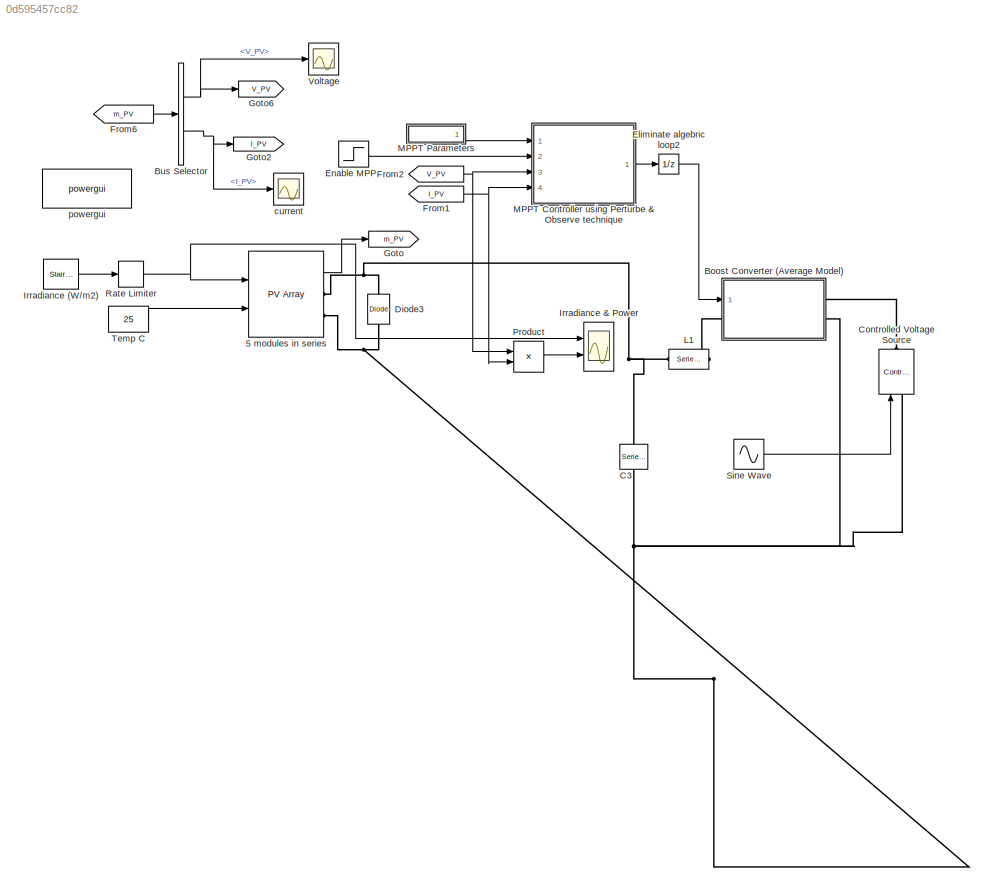
MODEL slx_0d595457cc82
KIND model
CONFIG AbsTol = auto
CONFIG EnableMultiTasking = off
CONFIG FixedStep = auto
CONFIG MaxStep = auto
CONFIG MinStep = auto
CONFIG RelTol = 1e-3
CONFIG SampleTimeConstraint = Unconstrained
CONFIG SolverName = VariableStepAuto
CONFIG StartTime = 0.0
CONFIG StopTime = 5
BLOCK [Reference] 5 modules in series  REF=spsPVArrayLib/PV Array
  Ports = [2, 1, 0, 0, 0, 0, 2]
  SourceBlock = spsPVArrayLib/PV Array
  SourceProductBaseCode = PS
  SourceType = PV array
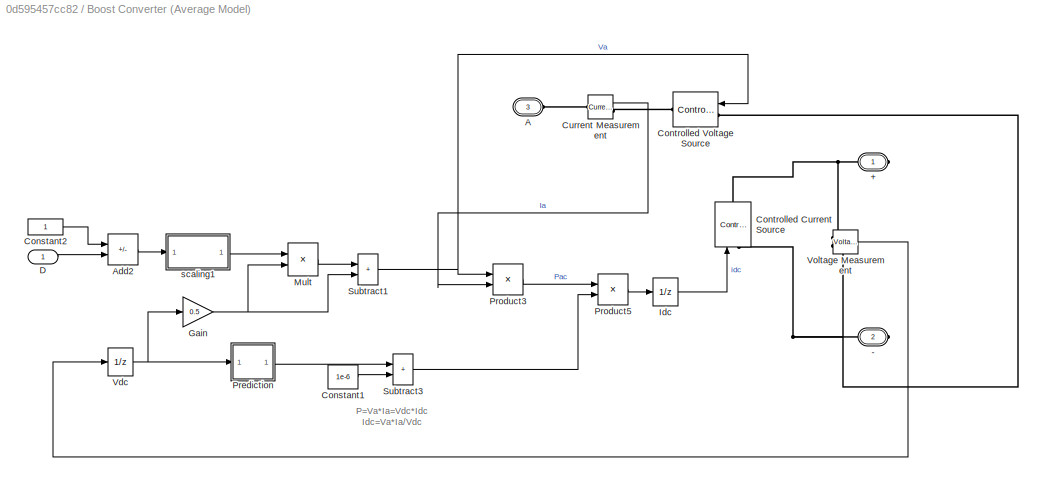
BLOCK [SubSystem] Boost Converter (Average Model)
  NameLocation = top
  Ports = [1, 0, 0, 0, 0, 1, 2]
  RequestExecContextInheritance = off
BLOCK [PMIOPort] Boost Converter (Average Model)/+
  Side = Right
  Tag = PMCPort
BLOCK [PMIOPort] Boost Converter (Average Model)/-
  Port = 2
  Side = Right
  Tag = PMCPort
BLOCK [PMIOPort] Boost Converter (Average Model)/A
  Port = 3
  Side = Left
  Tag = PMCPort
BLOCK [Sum] Boost Converter (Average Model)/Add2
  IconShape = rectangular
  Inputs = +-
  Ports = [2, 1]
BLOCK [Constant] Boost Converter (Average Model)/Constant1
  Value = 1e-6
BLOCK [Constant] Boost Converter (Average Model)/Constant2
BLOCK [Reference] Boost Converter (Average Model)/Controlled Current Source  REF=spsControlledCurrentSourceLib/Controlled Current Source
  NameLocation = right
  Ports = [1, 0, 0, 0, 0, 1, 1]
  SourceBlock = spsControlledCurrentSourceLib/Controlled Current Source
  SourceProductBaseCode = PS
  SourceType = Controlled Current Source
BLOCK [Reference] Boost Converter (Average Model)/Controlled Voltage Source  REF=spsControlledVoltageSourceLib/Controlled Voltage Source
  Ports = [1, 0, 0, 0, 0, 1, 1]
  SourceBlock = spsControlledVoltageSourceLib/Controlled Voltage Source
  SourceProductBaseCode = PS
  SourceType = Controlled Voltage Source
BLOCK [Reference] Boost Converter (Average Model)/Current Measurement  REF=spsCurrentMeasurementLib/Current Measurement
  Ports = [0, 1, 0, 0, 0, 1, 1]
  SourceBlock = spsCurrentMeasurementLib/Current Measurement
  SourceProductBaseCode = PS
  SourceType = Current Measurement
BLOCK [Inport] Boost Converter (Average Model)/D
BLOCK [Gain] Boost Converter (Average Model)/Gain
  Gain = 0.5
  NameLocation = top
BLOCK [UnitDelay] Boost Converter (Average Model)/Idc
  HasFrameUpgradeWarning = on
  SampleTime = Ts
BLOCK [Product] Boost Converter (Average Model)/Mult
  Inputs = **
  Ports = [2, 1]
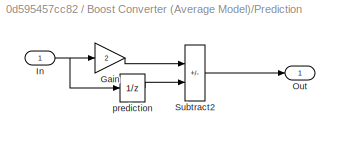
BLOCK [SubSystem] Boost Converter (Average Model)/Prediction
  Ports = [1, 1]
  RequestExecContextInheritance = off
BLOCK [Gain] Boost Converter (Average Model)/Prediction/Gain
  Gain = 2
BLOCK [Inport] Boost Converter (Average Model)/Prediction/In
BLOCK [Outport] Boost Converter (Average Model)/Prediction/Out
BLOCK [Sum] Boost Converter (Average Model)/Prediction/Subtract2
  IconShape = rectangular
  Inputs = +-
  Ports = [2, 1]
BLOCK [UnitDelay] Boost Converter (Average Model)/Prediction/prediction
  HasFrameUpgradeWarning = on
  SampleTime = Ts
BLOCK [Product] Boost Converter (Average Model)/Product3
  Ports = [2, 1]
  RndMeth = Zero
BLOCK [Product] Boost Converter (Average Model)/Product5
  Inputs = */
  Ports = [2, 1]
  RndMeth = Zero
BLOCK [Sum] Boost Converter (Average Model)/Subtract1
  IconShape = rectangular
  Ports = [2, 1]
BLOCK [Sum] Boost Converter (Average Model)/Subtract3
  IconShape = rectangular
  Ports = [2, 1]
BLOCK [UnitDelay] Boost Converter (Average Model)/Vdc
  HasFrameUpgradeWarning = on
  SampleTime = Ts
BLOCK [Reference] Boost Converter (Average Model)/Voltage Measurement  REF=spsVoltageMeasurementLib/Voltage Measurement
  Ports = [0, 1, 0, 0, 0, 2]
  SourceBlock = spsVoltageMeasurementLib/Voltage Measurement
  SourceProductBaseCode = PS
  SourceType = Voltage Measurement
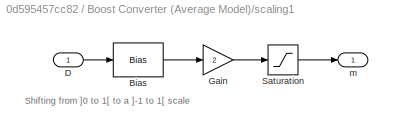
BLOCK [SubSystem] Boost Converter (Average Model)/scaling1
  NameLocation = top
  Ports = [1, 1]
  RequestExecContextInheritance = off
BLOCK [Bias] Boost Converter (Average Model)/scaling1/Bias
  Bias = -0.5
  SaturateOnIntegerOverflow = off
BLOCK [Inport] Boost Converter (Average Model)/scaling1/D
BLOCK [Gain] Boost Converter (Average Model)/scaling1/Gain
  Gain = 2
BLOCK [Saturate] Boost Converter (Average Model)/scaling1/Saturation
  LowerLimit = -1
  UpperLimit = 1
BLOCK [Outport] Boost Converter (Average Model)/scaling1/m
BLOCK [BusSelector] Bus Selector
  OutputSignals = V_PV,I_PV
  Ports = [1, 2]
BLOCK [Reference] C3  REF=spsSeriesRLCBranchLib/Series RLC Branch
  AttributesFormatString = \n
  NameLocation = left
  Ports = [0, 0, 0, 0, 0, 1, 1]
  SourceBlock = spsSeriesRLCBranchLib/Series RLC Branch
  SourceProductBaseCode = PS
  SourceType = Series RLC Branch
BLOCK [Reference] Controlled Voltage Source  REF=spsControlledVoltageSourceLib/Controlled Voltage Source
  NameLocation = right
  Ports = [1, 0, 0, 0, 0, 1, 1]
  SourceBlock = spsControlledVoltageSourceLib/Controlled Voltage Source
  SourceProductBaseCode = PS
  SourceType = Controlled Voltage Source
BLOCK [Reference] Diode3  REF=spsDiodeLib/Diode
  NameLocation = right
  Ports = [0, 0, 0, 0, 0, 1, 1]
  SourceBlock = spsDiodeLib/Diode
  SourceProductBaseCode = PS
  SourceType = Diode
BLOCK [UnitDelay] Eliminate algebric loop2
  HasFrameUpgradeWarning = on
  NameLocation = top
  SampleTime = Ts_Control
BLOCK [Step] Enable MPPT
  SampleTime = 0
  Time = 0.25
BLOCK [From] From1
  CloseFcn = tagdialog Close
  GotoTag = I_PV
  TagVisibility = global
BLOCK [From] From2
  CloseFcn = tagdialog Close
  GotoTag = V_PV
  TagVisibility = global
BLOCK [From] From6
  GotoTag = m_PV
BLOCK [Goto] Goto
  GotoTag = m_PV
BLOCK [Goto] Goto2
  GotoTag = I_PV
  TagVisibility = global
BLOCK [Goto] Goto6
  GotoTag = V_PV
  TagVisibility = global
BLOCK [Scope] Irradiance & Power
  Floating = off
  NumInputPorts = 2
  Ports = [2]
  ScopeSpecificationString = Simulink.scopes.TimeScopeBlockCfg('CurrentConfiguration', extmgr.ConfigurationSet(extmgr.Configuration('Core','General UI',true),extmgr.Configuration('Core','Source UI',true),extmgr.Configuration('Sources','WiredSimulink',true,'DataLoggingVariableName','ScopeData1'),extmgr.Configuration('Visuals','Time Domain',true,'SerializedDisplays',{struct('MinYLimReal','-125.00000','MaxYLimReal','1119.17093',...<+2086ch>
BLOCK [Reference] Irradiance (W//m2)  REF=spsStairGeneratorLib/Stair
Generator
  NameLocation = top
  Ports = [0, 1]
  SourceBlock = spsStairGeneratorLib/Stair\nGenerator
  SourceProductBaseCode = PS
  SourceType = Stair Generator
BLOCK [Reference] L1  REF=spsSeriesRLCBranchLib/Series RLC Branch
  Ports = [0, 0, 0, 0, 0, 1, 1]
  SourceBlock = spsSeriesRLCBranchLib/Series RLC Branch
  SourceProductBaseCode = PS
  SourceType = Series RLC Branch
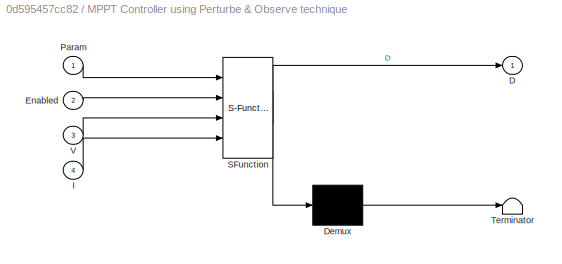
BLOCK [SubSystem] MPPT Controller using Perturbe & Observe technique 
  ErrorFcn = Stateflow.Translate.translate
  NameLocation = top
  PermitHierarchicalResolution = ExplicitOnly
  Ports = [4, 1]
  RequestExecContextInheritance = off
  SFBlockType = MATLAB Function
  TreatAsAtomicUnit = on
BLOCK [Demux] MPPT Controller using Perturbe & Observe technique / Demux 
  Outputs = 1
  Ports = [1, 1]
BLOCK [S-Function] MPPT Controller using Perturbe & Observe technique / SFunction 
  EnableBusSupport = on
  FunctionName = sf_sfun
  PortCounts = [4 2]
  Ports = [4, 2]
  SFcnIsStateOwnerBlock = off
  SFunctionDeploymentMode = off
  Tag = Stateflow S-Function 4
BLOCK [Terminator] MPPT Controller using Perturbe & Observe technique / Terminator 
BLOCK [Outport] MPPT Controller using Perturbe & Observe technique /D
BLOCK [Inport] MPPT Controller using Perturbe & Observe technique /Enabled
  Port = 2
BLOCK [Inport] MPPT Controller using Perturbe & Observe technique /I
  Port = 4
BLOCK [Inport] MPPT Controller using Perturbe & Observe technique /Param
BLOCK [Inport] MPPT Controller using Perturbe & Observe technique /V
  Port = 3
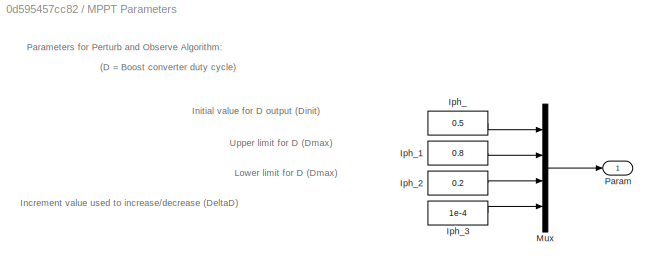
BLOCK [SubSystem] MPPT Parameters
  NameLocation = top
  Ports = [0, 1]
  RequestExecContextInheritance = off
BLOCK [Constant] MPPT Parameters/Iph_
  Value = 0.5
BLOCK [Constant] MPPT Parameters/Iph_1
  Value = 0.8
BLOCK [Constant] MPPT Parameters/Iph_2
  Value = 0.2
BLOCK [Constant] MPPT Parameters/Iph_3
  Value = 1e-4
BLOCK [Mux] MPPT Parameters/Mux
  DisplayOption = bar
  Ports = [4, 1]
BLOCK [Outport] MPPT Parameters/Param
BLOCK [Product] Product
  Ports = [2, 1]
BLOCK [RateLimiter] Rate Limiter
  FallingSlewLimit = -6000
  InitialCondition = 1000
  NameLocation = top
  RisingSlewLimit = 6000
  SampleTimeMode = inherited
BLOCK [Sin] Sine Wave
  Amplitude = 0.1
  Bias = 400
  Frequency = 2*pi
  Ports = [0, 1]
  SampleTime = 0
BLOCK [Constant] Temp C
  Value = 25
BLOCK [Scope] Voltage
  Floating = off
  NumInputPorts = 1
  Ports = [1]
  ScopeSpecificationString = Simulink.scopes.TimeScopeBlockCfg('CurrentConfiguration', extmgr.ConfigurationSet(extmgr.Configuration('Core','General UI',true),extmgr.Configuration('Core','Source UI',true),extmgr.Configuration('Sources','WiredSimulink',true,'DataLoggingVariableName','ScopeData2'),extmgr.Configuration('Visuals','Time Domain',true,'SerializedDisplays',{struct('MinYLimReal','-38.80492','MaxYLimReal','354.21041','Y...<+1394ch>
BLOCK [Scope] current
  Floating = off
  NumInputPorts = 1
  Ports = [1]
  ScopeSpecificationString = Simulink.scopes.TimeScopeBlockCfg('CurrentConfiguration', extmgr.ConfigurationSet(extmgr.Configuration('Core','General UI',true),extmgr.Configuration('Core','Source UI',true),extmgr.Configuration('Sources','WiredSimulink',true),extmgr.Configuration('Visuals','Time Domain',true,'SerializedDisplays',{struct('MinYLimReal','-38.80492','MaxYLimReal','354.21041','YLabelReal','','MinYLimMag','0.00000','M...<+1355ch>
BLOCK [Reference] powergui  REF=spspowerguiLib/powergui
  Ports = []
  Priority = 1
  SourceBlock = spspowerguiLib/powergui
  SourceProductBaseCode = PS
  SourceType = PSB option menu block
ANNOTATION Boost Converter (Average Model): P=Va*Ia=Vdc*Idc Idc=Va*Ia/Vdc
ANNOTATION Boost Converter (Average Model)/scaling1: Shifting from ]0 to 1[ to a ]-1 to 1[ scale
ANNOTATION MPPT Parameters: (D = Boost converter duty cycle)
ANNOTATION MPPT Parameters: Increment value used to increase/decrease (DeltaD)
ANNOTATION MPPT Parameters: Initial value for D output (Dinit)
ANNOTATION MPPT Parameters: Lower limit for D (Dmax)
ANNOTATION MPPT Parameters: Parameters for Perturb and Observe Algorithm:
ANNOTATION MPPT Parameters: Upper limit for D (Dmax)
LINE 5 modules in series:1 -> Goto:1
LINE Boost Converter (Average Model)/Add2:1 -> Boost Converter (Average Model)/scaling1:1
LINE Boost Converter (Average Model)/Constant1:1 -> Boost Converter (Average Model)/Subtract3:2
LINE Boost Converter (Average Model)/Constant2:1 -> Boost Converter (Average Model)/Add2:1
LINE Boost Converter (Average Model)/Current Measurement:1 -> Boost Converter (Average Model)/Product3:2
LINE Boost Converter (Average Model)/D:1 -> Boost Converter (Average Model)/Add2:2
NET Boost Converter (Average Model)/Gain:1 -> Boost Converter (Average Model)/Mult:2, Boost Converter (Average Model)/Subtract1:2
LINE Boost Converter (Average Model)/Idc:1 -> Boost Converter (Average Model)/Controlled Current Source:1
LINE Boost Converter (Average Model)/Mult:1 -> Boost Converter (Average Model)/Subtract1:1
LINE Boost Converter (Average Model)/Prediction/Gain:1 -> Boost Converter (Average Model)/Prediction/Subtract2:1
NET Boost Converter (Average Model)/Prediction/In:1 -> Boost Converter (Average Model)/Prediction/Gain:1, Boost Converter (Average Model)/Prediction/prediction:1
LINE Boost Converter (Average Model)/Prediction/Subtract2:1 -> Boost Converter (Average Model)/Prediction/Out:1
LINE Boost Converter (Average Model)/Prediction/prediction:1 -> Boost Converter (Average Model)/Prediction/Subtract2:2
LINE Boost Converter (Average Model)/Prediction:1 -> Boost Converter (Average Model)/Subtract3:1
LINE Boost Converter (Average Model)/Product3:1 -> Boost Converter (Average Model)/Product5:1
LINE Boost Converter (Average Model)/Product5:1 -> Boost Converter (Average Model)/Idc:1
NET Boost Converter (Average Model)/Subtract1:1 -> Boost Converter (Average Model)/Controlled Voltage Source:1, Boost Converter (Average Model)/Product3:1
LINE Boost Converter (Average Model)/Subtract3:1 -> Boost Converter (Average Model)/Product5:2
NET Boost Converter (Average Model)/Vdc:1 -> Boost Converter (Average Model)/Gain:1, Boost Converter (Average Model)/Prediction:1
LINE Boost Converter (Average Model)/Voltage Measurement:1 -> Boost Converter (Average Model)/Vdc:1
LINE Boost Converter (Average Model)/scaling1/Bias:1 -> Boost Converter (Average Model)/scaling1/Gain:1
LINE Boost Converter (Average Model)/scaling1/D:1 -> Boost Converter (Average Model)/scaling1/Bias:1
LINE Boost Converter (Average Model)/scaling1/Gain:1 -> Boost Converter (Average Model)/scaling1/Saturation:1
LINE Boost Converter (Average Model)/scaling1/Saturation:1 -> Boost Converter (Average Model)/scaling1/m:1
LINE Boost Converter (Average Model)/scaling1:1 -> Boost Converter (Average Model)/Mult:1
NET Bus Selector:1 -> Goto6:1, Voltage:1
NET Bus Selector:2 -> Goto2:1, current:1
LINE Eliminate algebric loop2:1 -> Boost Converter (Average Model):1
LINE Enable MPPT:1 -> MPPT Controller using Perturbe & Observe technique :2
NET From1:1 -> MPPT Controller using Perturbe & Observe technique :4, Product:2
NET From2:1 -> MPPT Controller using Perturbe & Observe technique :3, Product:1
LINE From6:1 -> Bus Selector:1
LINE Irradiance (W//m2):1 -> Rate Limiter:1
LINE MPPT Controller using Perturbe & Observe technique :1 -> Eliminate algebric loop2:1
LINE MPPT Parameters/Iph_1:1 -> MPPT Parameters/Mux:2
LINE MPPT Parameters/Iph_2:1 -> MPPT Parameters/Mux:3
LINE MPPT Parameters/Iph_3:1 -> MPPT Parameters/Mux:4
LINE MPPT Parameters/Iph_:1 -> MPPT Parameters/Mux:1
LINE MPPT Parameters/Mux:1 -> MPPT Parameters/Param:1
LINE MPPT Parameters:1 -> MPPT Controller using Perturbe & Observe technique :1
LINE Product:1 -> Irradiance & Power:2
NET Rate Limiter:1 -> 5 modules in series:1, Irradiance & Power:1
LINE Sine Wave:1 -> Controlled Voltage Source:1
LINE Temp C:1 -> 5 modules in series:2
PNET net1: 5 modules in series:RConn1 -- C3:LConn1 -- Diode3:RConn1 -- L1:LConn1
PNET net2: 5 modules in series:RConn2 -- Boost Converter (Average Model):RConn2 -- C3:RConn1 -- Controlled Voltage Source:LConn1 -- Diode3:LConn1
PNET net3: Boost Converter (Average Model)/+:RConn1 -- Boost Converter (Average Model)/Controlled Current Source:RConn1 -- Boost Converter (Average Model)/Voltage Measurement:LConn1
PNET net4: Boost Converter (Average Model)/-:RConn1 -- Boost Converter (Average Model)/Controlled Current Source:LConn1 -- Boost Converter (Average Model)/Controlled Voltage Source:LConn1 -- Boost Converter (Average Model)/Voltage Measurement:LConn2
PLINE Boost Converter (Average Model)/A:RConn1 -- Boost Converter (Average Model)/Current Measurement:LConn1
PLINE Boost Converter (Average Model)/Controlled Voltage Source:RConn1 -- Boost Converter (Average Model)/Current Measurement:RConn1
PLINE Boost Converter (Average Model):LConn1 -- L1:RConn1
PLINE Boost Converter (Average Model):RConn1 -- Controlled Voltage Source:RConn1
note: NET lines group one-source signal fan-out (src -> all destinations, sorted); 1:1 wires keep LINE; PNET lines group multi-terminal physical nets as a canonical sorted terminal list (undirected conserving connections); 2-terminal nets keep the pairwise PLINE form
CHART MPPT Controller
using Perturbe 
& Observe technique
  states=1 transitions=1
  STATE_LABEL 'eML_blk_kernel()'
  STATE_LABEL 'SCRIPT:\nfunction D  = PandO(Param, Enabled, V, I)\n\n% MPPT controller based on the Perturb & Observe algorithm.\n\n% D output = Duty cycle of the boost converter (value between 0 and 1)\n%\n% Enabled input = 1 to enable the MPPT controller\n% V input = PV array terminal voltage (V)\n% I input = PV array current (A)\n%\n% Param input:\nDinit = Param(1);  %Initial value for D output\nDmax = Param(2);   %Maximu...<+678ch>'
CHART  states=0 transitions=0
